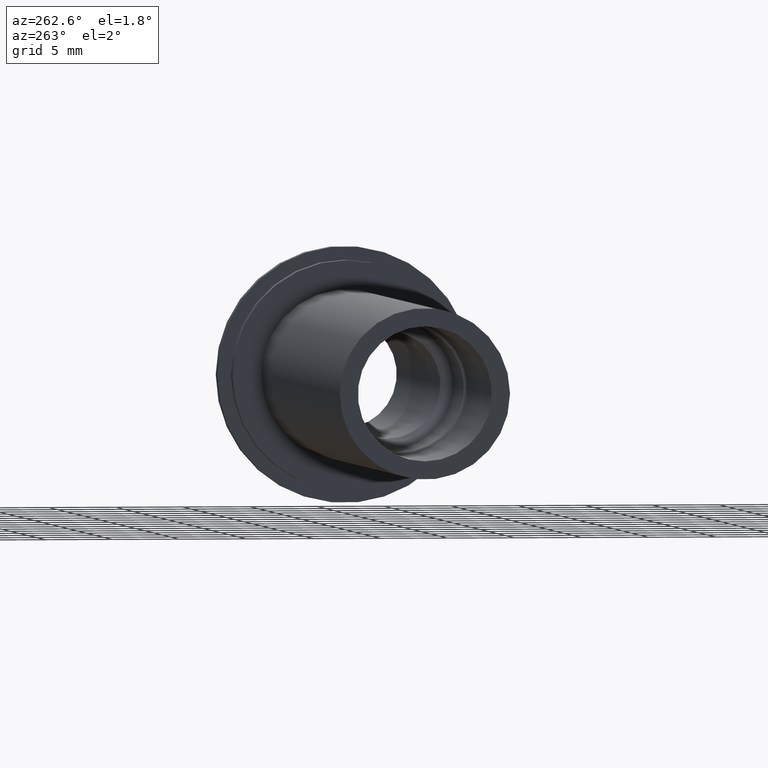
[diagram: clean part render]
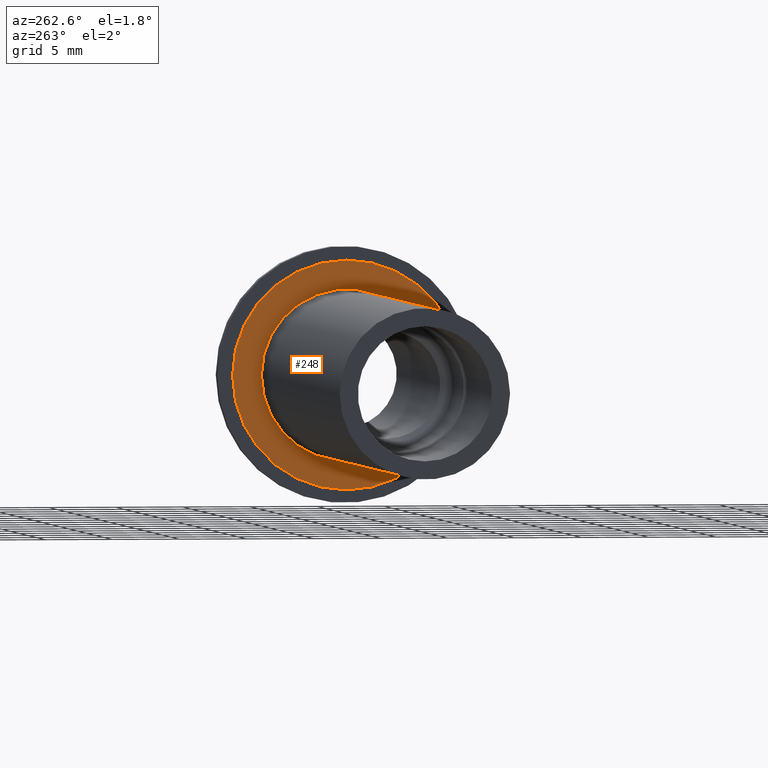
[diagram: same view with one face highlighted and labeled with its STEP entity id]
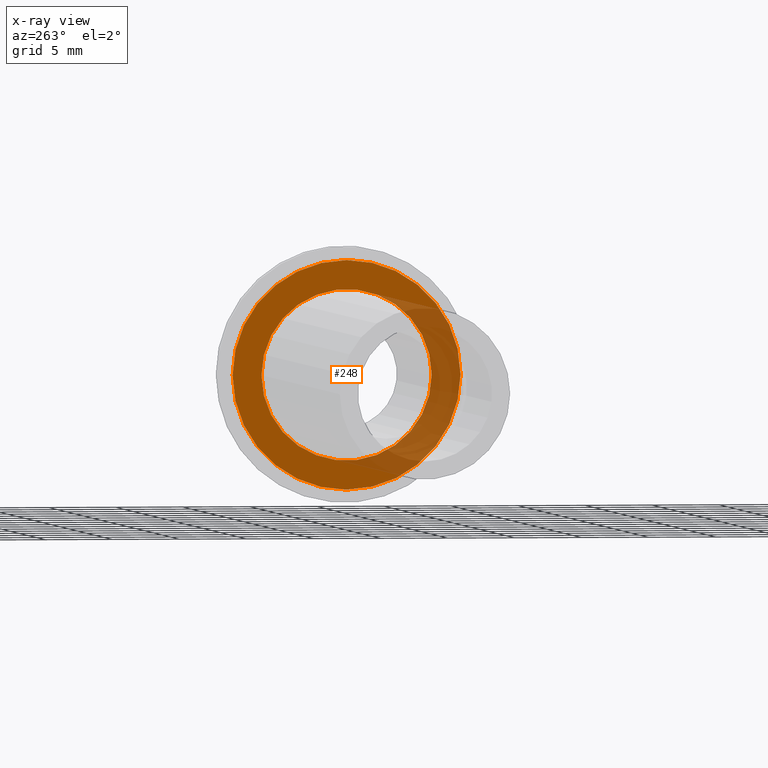
[diagram: x-ray of the same camera — body ghosted, the highlighted face saturated]
A machine part, auxiliary view. The second image highlights one B-rep face of the part: STEP entity #248.
The next image is the same camera in x-ray: the body ghosted, the highlighted face saturated — about 33% of this face is hidden behind the body in this view.
In plain terms, the highlighted planar face has unit normal (-1, 0, 0).
Its self-contained STEP definition (entity closure, byte-faithful):
#89=FACE_BOUND('',#122,.T.);
#93=PLANE('',#295);
#106=FACE_OUTER_BOUND('',#121,.T.);
#121=EDGE_LOOP('',(#226));
#122=EDGE_LOOP('',(#227));
#151=CIRCLE('',#294,6.35);
#152=CIRCLE('',#296,8.5);
#167=VERTEX_POINT('',#445);
#168=VERTEX_POINT('',#449);
#186=EDGE_CURVE('',#167,#167,#151,.T.);
#188=EDGE_CURVE('',#168,#168,#152,.T.);
#226=ORIENTED_EDGE('',*,*,#188,.F.);
#227=ORIENTED_EDGE('',*,*,#186,.T.);
#248=ADVANCED_FACE('',(#106,#89),#93,.T.);
#294=AXIS2_PLACEMENT_3D('',#446,#364,#365);
#295=AXIS2_PLACEMENT_3D('',#448,#367,#368);
#296=AXIS2_PLACEMENT_3D('',#450,#369,#370);
#364=DIRECTION('center_axis',(1.,0.,0.));
#365=DIRECTION('ref_axis',(0.,0.,-1.));
#367=DIRECTION('center_axis',(-1.,0.,0.));
#368=DIRECTION('ref_axis',(0.,0.,1.));
#369=DIRECTION('center_axis',(1.,0.,0.));
#370=DIRECTION('ref_axis',(0.,0.,-1.));
#445=CARTESIAN_POINT('',(-2.,-6.35,-7.7765071745857E-16));
#446=CARTESIAN_POINT('Origin',(-2.,0.,0.));
#448=CARTESIAN_POINT('Origin',(-2.,8.5,0.));
#449=CARTESIAN_POINT('',(-2.,-8.5,-1.04094977927525E-15));
#450=CARTESIAN_POINT('Origin',(-2.,0.,0.));